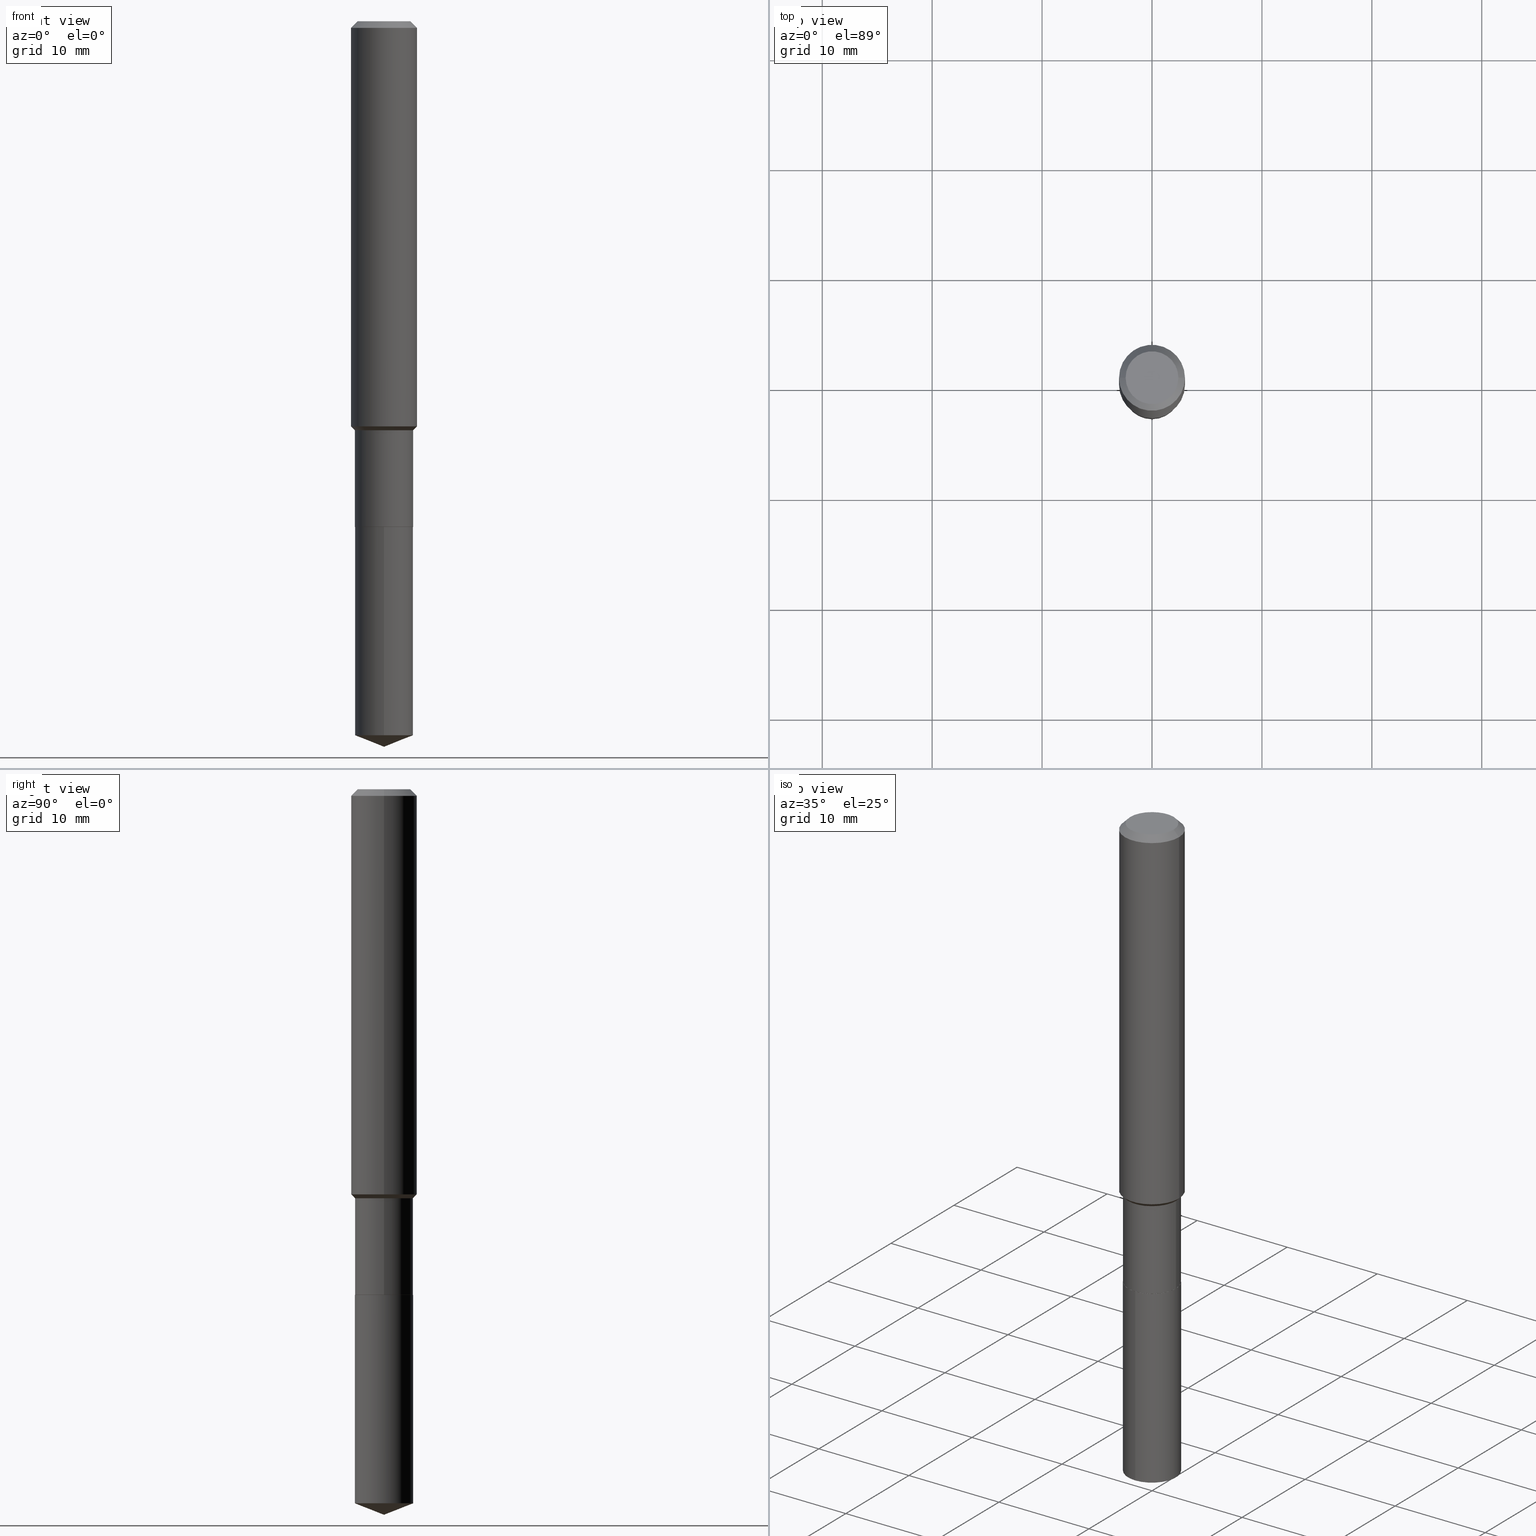
[diagram: canonical four-view strip — front | top / right | iso, engineering-drawing reading convention]
A machine part, canonical four-view strip (front | top / right | iso — engineering-drawing reading convention). The complete STEP part file that produces these views, byte-faithful:
ISO-10303-21;
HEADER;
FILE_DESCRIPTION (( 'STEP AP203' ),
    '1' );
FILE_NAME ('66423.STEP',
    '2024-04-24T22:31:54',
    ( '' ),
    ( '' ),
    'SwSTEP 2.0',
    'SolidWorks 2023',
    '' );
FILE_SCHEMA (( 'CONFIG_CONTROL_DESIGN' ));
ENDSEC;

DATA;
#1 = DIRECTION ( 'NONE',  ( 2.445580598395874941E-29, -3.491321246034550326E-15, -1.000000000000000000 ) ) ;
#2 = CC_DESIGN_DATE_AND_TIME_ASSIGNMENT ( #267, #261, ( #384 ) ) ;
#3 = CARTESIAN_POINT ( 'NONE',  ( 6.354191715484545882E-29, -9.072428981848907706E-15, -2.598399999999999821 ) ) ;
#4 = FACE_OUTER_BOUND ( 'NONE', #213, .T. ) ;
#5 = AXIS2_PLACEMENT_3D ( 'NONE', #473, #395, #476 ) ;
#6 = CC_DESIGN_APPROVAL ( #352, ( #384 ) ) ;
#7 = AXIS2_PLACEMENT_3D ( 'NONE', #373, #183, #369 ) ;
#8 = CARTESIAN_POINT ( 'NONE',  ( 3.581878160419369254E-29, -5.113972717003554503E-15, -1.464699999999999891 ) ) ;
#9 = DIRECTION ( 'NONE',  ( 0.000000000000000000, 0.000000000000000000, 1.000000000000000000 ) ) ;
#10 = DIRECTION ( 'NONE',  ( -2.445468806185136597E-29, 3.491481338843145583E-15, 1.000000000000000000 ) ) ;
#11 = ORIENTED_EDGE ( 'NONE', *, *, #479, .F. ) ;
#12 = DIRECTION ( 'NONE',  ( -2.445468806185136597E-29, 3.491481338843145583E-15, 1.000000000000000000 ) ) ;
#13 = ORIENTED_EDGE ( 'NONE', *, *, #426, .T. ) ;
#14 = CARTESIAN_POINT ( 'NONE',  ( 0.1180999999999999966, -9.071566814582237199E-16, -0.02362000000000014088 ) ) ;
#15 = EDGE_LOOP ( 'NONE', ( #443, #96, #458, #266 ) ) ;
#16 = COORDINATED_UNIVERSAL_TIME_OFFSET ( 5, 0, .BEHIND. ) ;
#17 = LINE ( 'NONE', #184, #214 ) ;
#18 = ADVANCED_FACE ( 'NONE', ( #58 ), #454, .T. ) ;
#19 = COORDINATED_UNIVERSAL_TIME_OFFSET ( 5, 0, .BEHIND. ) ;
#20 = DIRECTION ( 'NONE',  ( -2.445580598395875501E-29, 3.491321246034550326E-15, 1.000000000000000000 ) ) ;
#21 = ORIENTED_EDGE ( 'NONE', *, *, #173, .F. ) ;
#22 = EDGE_CURVE ( 'NONE', #45, #278, #484, .T. ) ;
#23 = DIRECTION ( 'NONE',  ( 1.000000000000000000, -6.982962677686267499E-15, 4.875432709231658792E-29 ) ) ;
#24 = EDGE_LOOP ( 'NONE', ( #113, #306, #241, #21 ) ) ;
#25 = AXIS2_PLACEMENT_3D ( 'NONE', #449, #451, #104 ) ;
#26 = EDGE_CURVE ( 'NONE', #210, #188, #248, .T. ) ;
#27 = DIRECTION ( 'NONE',  ( 2.438088387897960049E-29, -3.491481338843145188E-15, -1.000000000000000000 ) ) ;
#28 = DIRECTION ( 'NONE',  ( -6.982962677686265922E-15, -1.000000000000000000, 3.498627837350086264E-15 ) ) ;
#29 = DIRECTION ( 'NONE',  ( -0.7071067811865459074, 2.468850131082240100E-15, -0.7071067811865491270 ) ) ;
#30 = VERTEX_POINT ( 'NONE', #33 ) ;
#31 = VERTEX_POINT ( 'NONE', #182 ) ;
#32 = AXIS2_PLACEMENT_3D ( 'NONE', #397, #27, #60 ) ;
#33 = CARTESIAN_POINT ( 'NONE',  ( -0.1043499999999999706, -4.976198495723869965E-15, -1.810499999999999998 ) ) ;
#34 = DIRECTION ( 'NONE',  ( 1.000000000000000000, -6.982962677686270655E-15, 0.000000000000000000 ) ) ;
#35 = ADVANCED_FACE ( 'NONE', ( #339 ), #465, .T. ) ;
#36 = LINE ( 'NONE', #177, #439 ) ;
#37 = AXIS2_PLACEMENT_3D ( 'NONE', #452, #72, #34 ) ;
#38 = EDGE_CURVE ( 'NONE', #126, #480, #87, .T. ) ;
#39 = LINE ( 'NONE', #3, #275 ) ;
#40 = DIRECTION ( 'NONE',  ( 0.7071067811866078578, -2.468850131082888544E-15, 0.7071067811864871766 ) ) ;
#41 = FACE_OUTER_BOUND ( 'NONE', #15, .T. ) ;
#42 = CIRCLE ( 'NONE', #146, 0.1043499999999999706 ) ;
#43 = CLOSED_SHELL ( 'NONE', ( #348, #103, #18, #401, #158 ) ) ;
#44 = FACE_OUTER_BOUND ( 'NONE', #244, .T. ) ;
#45 = VERTEX_POINT ( 'NONE', #67 ) ;
#46 = DIMENSIONAL_EXPONENTS ( 1.000000000000000000, 0.000000000000000000, 0.000000000000000000, 0.000000000000000000, 0.000000000000000000, 0.000000000000000000, 0.000000000000000000 ) ;
#47 = CALENDAR_DATE ( 2024, 24, 4 ) ;
#48 = DIRECTION ( 'NONE',  ( -2.445468806185136597E-29, 3.491481338843145583E-15, 1.000000000000000000 ) ) ;
#49 = PERSON_AND_ORGANIZATION_ROLE ( 'design_owner' ) ;
#50 = DIRECTION ( 'NONE',  ( 1.000000000000000000, -6.982962677686266711E-15, 0.000000000000000000 ) ) ;
#51 = PERSON_AND_ORGANIZATION ( #269, #447 ) ;
#52 = CIRCLE ( 'NONE', #402, 0.09447999999999998066 ) ;
#53 = LINE ( 'NONE', #187, #134 ) ;
#54 = CC_DESIGN_APPROVAL ( #399, ( #226 ) ) ;
#55 = PERSON_AND_ORGANIZATION ( #269, #447 ) ;
#56 = CARTESIAN_POINT ( 'NONE',  ( 0.1043499999999999567, -5.842644872420116125E-15, -1.464699999999999891 ) ) ;
#57 = DIRECTION ( 'NONE',  ( -6.982962677686265922E-15, -1.000000000000000000, 2.617966452960482631E-15 ) ) ;
#58 = FACE_OUTER_BOUND ( 'NONE', #312, .T. ) ;
#59 = EDGE_CURVE ( 'NONE', #355, #31, #166, .T. ) ;
#60 = DIRECTION ( 'NONE',  ( -1.000000000000000000, 6.982962677686265922E-15, -4.876176775795935793E-29 ) ) ;
#61 = ORIENTED_EDGE ( 'NONE', *, *, #486, .F. ) ;
#62 = DIRECTION ( 'NONE',  ( -2.445468806185136597E-29, 3.491481338843145583E-15, 1.000000000000000000 ) ) ;
#63 = VERTEX_POINT ( 'NONE', #367 ) ;
#64 = ORIENTED_EDGE ( 'NONE', *, *, #421, .F. ) ;
#65 = AXIS2_PLACEMENT_3D ( 'NONE', #379, #356, #79 ) ;
#66 = CARTESIAN_POINT ( 'NONE',  ( 0.000000000000000000, 0.000000000000000000, 0.000000000000000000 ) ) ;
#67 = CARTESIAN_POINT ( 'NONE',  ( 0.1181000000000001632, -5.890652740829210234E-15, -1.450949999999999740 ) ) ;
#68 = PLANE ( 'NONE',  #390 ) ;
#69 = ADVANCED_FACE ( 'NONE', ( #292 ), #143, .F. ) ;
#70 = FACE_OUTER_BOUND ( 'NONE', #380, .T. ) ;
#71 = VECTOR ( 'NONE', #345, 39.37007874015748854 ) ;
#72 = DIRECTION ( 'NONE',  ( -2.445468806185136597E-29, 3.491481338843145583E-15, 1.000000000000000000 ) ) ;
#73 = APPLICATION_CONTEXT ( 'configuration controlled 3d designs of mechanical parts and assemblies' ) ;
#74 = LINE ( 'NONE', #374, #71 ) ;
#75 = DIRECTION ( 'NONE',  ( -1.000000000000000000, 6.982962677686266711E-15, 0.000000000000000000 ) ) ;
#76 = ORIENTED_EDGE ( 'NONE', *, *, #415, .T. ) ;
#77 = VECTOR ( 'NONE', #225, 39.37007874015748143 ) ;
#78 = COORDINATED_UNIVERSAL_TIME_OFFSET ( 5, 0, .BEHIND. ) ;
#79 = DIRECTION ( 'NONE',  ( -6.982962677686265922E-15, -1.000000000000000000, 2.617966452960482631E-15 ) ) ;
#80 = VECTOR ( 'NONE', #148, 39.37007874015748143 ) ;
#81 = CARTESIAN_POINT ( 'NONE',  ( 0.1181000000000000799, -8.246878922347486570E-16, 5.758764772215004644E-30 ) ) ;
#82 = CC_DESIGN_PERSON_AND_ORGANIZATION_ASSIGNMENT ( #459, #270, ( #384 ) ) ;
#83 = LENGTH_MEASURE_WITH_UNIT ( LENGTH_MEASURE( 0.02539999999999999897 ), #393 );
#84 = DIRECTION ( 'NONE',  ( -2.445468806185136597E-29, 3.491481338843145583E-15, 1.000000000000000000 ) ) ;
#85 = APPROVAL_STATUS ( 'not_yet_approved' ) ;
#86 = DIRECTION ( 'NONE',  ( -2.445468806185136597E-29, 3.491481338843145583E-15, 1.000000000000000000 ) ) ;
#87 = CIRCLE ( 'NONE', #299, 0.1038499999999999840 ) ;
#88 = ORIENTED_EDGE ( 'NONE', *, *, #212, .T. ) ;
#89 = APPROVAL_DATE_TIME ( #463, #288 ) ;
#90 = CARTESIAN_POINT ( 'NONE',  ( -0.1043499999999999567, -4.976198495723869965E-15, -1.464699999999999891 ) ) ;
#91 = ORIENTED_EDGE ( 'NONE', *, *, #332, .T. ) ;
#92 = AXIS2_PLACEMENT_3D ( 'NONE', #386, #12, #50 ) ;
#93 = CARTESIAN_POINT ( 'NONE',  ( 4.716267017698007905E-46, -6.733579360998555036E-32, -1.928573779297252010E-17 ) ) ;
#94 = ORIENTED_EDGE ( 'NONE', *, *, #154, .T. ) ;
#95 = DIRECTION ( 'NONE',  ( -2.445468806185136877E-29, 3.491481338843145188E-15, 1.000000000000000000 ) ) ;
#96 = ORIENTED_EDGE ( 'NONE', *, *, #239, .T. ) ;
#97 = AXIS2_PLACEMENT_3D ( 'NONE', #298, #180, #455 ) ;
#98 = ORIENTED_EDGE ( 'NONE', *, *, #38, .T. ) ;
#99 = ORIENTED_EDGE ( 'NONE', *, *, #198, .F. ) ;
#100 = CIRCLE ( 'NONE', #195, 0.1180999999999999966 ) ;
#101 = ADVANCED_FACE ( 'NONE', ( #337 ), #238, .T. ) ;
#102 = FACE_OUTER_BOUND ( 'NONE', #128, .T. ) ;
#103 = ADVANCED_FACE ( 'NONE', ( #107 ), #147, .T. ) ;
#104 = DIRECTION ( 'NONE',  ( 1.000000000000000000, -6.982962677686265922E-15, 4.876176775795935793E-29 ) ) ;
#105 = UNCERTAINTY_MEASURE_WITH_UNIT (LENGTH_MEASURE( 1.000000000000000082E-05 ), #199, 'distance_accuracy_value', 'NONE');
#106 = DIRECTION ( 'NONE',  ( 1.000000000000000000, -6.982962677686265922E-15, 0.000000000000000000 ) ) ;
#107 = FACE_OUTER_BOUND ( 'NONE', #156, .T. ) ;
#108 = DIRECTION ( 'NONE',  ( -2.445580598395875501E-29, 3.491321246034550326E-15, 1.000000000000000000 ) ) ;
#109 = APPROVAL_PERSON_ORGANIZATION ( #308, #288, #347 ) ;
#110 = CARTESIAN_POINT ( 'NONE',  ( 0.000000000000000000, 0.000000000000000000, 0.000000000000000000 ) ) ;
#111 = EDGE_LOOP ( 'NONE', ( #358, #477, #236, #167 ) ) ;
#112 = DIRECTION ( 'NONE',  ( -6.982962677686265922E-15, -1.000000000000000000, 5.235932905920965262E-15 ) ) ;
#113 = ORIENTED_EDGE ( 'NONE', *, *, #338, .F. ) ;
#114 = DIRECTION ( 'NONE',  ( 1.000000000000000000, -6.982962677686265922E-15, 0.000000000000000000 ) ) ;
#115 = CALENDAR_DATE ( 2024, 24, 4 ) ;
#116 = DIRECTION ( 'NONE',  ( 1.000000000000000000, -6.982962677686265133E-15, 0.000000000000000000 ) ) ;
#117 = DATE_AND_TIME ( #229, #131 ) ;
#118 = CYLINDRICAL_SURFACE ( 'NONE', #378, 0.1181000000000000799 ) ;
#119 = ORIENTED_EDGE ( 'NONE', *, *, #169, .F. ) ;
#120 = CIRCLE ( 'NONE', #65, 0.1043499999999999844 ) ;
#121 = PERSON_AND_ORGANIZATION_ROLE ( 'creator' ) ;
#122 = ADVANCED_FACE ( 'NONE', ( #102 ), #487, .T. ) ;
#123 = AXIS2_PLACEMENT_3D ( 'NONE', #423, #84, #300 ) ;
#124 = DIRECTION ( 'NONE',  ( 0.7071067811865505703, -2.468850131082288615E-15, 0.7071067811865444641 ) ) ;
#125 = VECTOR ( 'NONE', #413, 39.37007874015748143 ) ;
#126 = VERTEX_POINT ( 'NONE', #336 ) ;
#127 = DIRECTION ( 'NONE',  ( -6.982962677686265922E-15, -1.000000000000000000, 2.617966452960482631E-15 ) ) ;
#128 = EDGE_LOOP ( 'NONE', ( #283, #91, #462, #99 ) ) ;
#129 = DIRECTION ( 'NONE',  ( -6.982962677686265922E-15, -1.000000000000000000, 2.617966452960482631E-15 ) ) ;
#130 = VERTEX_POINT ( 'NONE', #137 ) ;
#131 = LOCAL_TIME ( 18, 31, 54.00000000000000000, #196 ) ;
#132 = LINE ( 'NONE', #360, #164 ) ;
#133 = EDGE_LOOP ( 'NONE', ( #159, #249, #327, #428 ) ) ;
#134 = VECTOR ( 'NONE', #464, 39.37007874015748143 ) ;
#135 = CC_DESIGN_PERSON_AND_ORGANIZATION_ASSIGNMENT ( #430, #417, ( #406 ) ) ;
#136 = ORIENTED_EDGE ( 'NONE', *, *, #276, .F. ) ;
#137 = CARTESIAN_POINT ( 'NONE',  ( -0.09447999999999998066, 7.009847083995354710E-16, -1.928573779297727792E-17 ) ) ;
#138 = CARTESIAN_POINT ( 'NONE',  ( 4.428744008001282238E-29, -6.323072704644935995E-15, -1.810999999999999943 ) ) ;
#139 = AXIS2_PLACEMENT_3D ( 'NONE', #409, #370, #106 ) ;
#140 = CARTESIAN_POINT ( 'NONE',  ( -7.286721554165174458E-16, -0.1043500000000063127, -1.810999999999999721 ) ) ;
#141 = CC_DESIGN_APPROVAL ( #288, ( #406 ) ) ;
#142 = AXIS2_PLACEMENT_3D ( 'NONE', #8, #48, #114 ) ;
#143 = PLANE ( 'NONE',  #25 ) ;
#144 = VECTOR ( 'NONE', #29, 39.37007874015748143 ) ;
#145 = DIRECTION ( 'NONE',  ( 1.000000000000000000, -6.982962677686265922E-15, 0.000000000000000000 ) ) ;
#146 = AXIS2_PLACEMENT_3D ( 'NONE', #392, #362, #481 ) ;
#147 = CONICAL_SURFACE ( 'NONE', #429, 99.94676754583763056, 1.195550537616111519 ) ;
#148 = DIRECTION ( 'NONE',  ( -0.7071067811866078578, 7.493145998870571886E-15, 0.7071067811864871766 ) ) ;
#149 = ORIENTED_EDGE ( 'NONE', *, *, #479, .T. ) ;
#150 = APPROVAL_STATUS ( 'not_yet_approved' ) ;
#151 = DIRECTION ( 'NONE',  ( 0.7071067811865459074, -7.319954787623249734E-15, -0.7071067811865491270 ) ) ;
#152 = ORIENTED_EDGE ( 'NONE', *, *, #154, .F. ) ;
#153 = COORDINATED_UNIVERSAL_TIME_OFFSET ( 5, 0, .BEHIND. ) ;
#154 = EDGE_CURVE ( 'NONE', #480, #246, #36, .T. ) ;
#155 = DIRECTION ( 'NONE',  ( -2.445468806185136877E-29, 3.491481338843145188E-15, 1.000000000000000000 ) ) ;
#156 = EDGE_LOOP ( 'NONE', ( #119, #329, #325 ) ) ;
#157 = FACE_OUTER_BOUND ( 'NONE', #394, .T. ) ;
#158 = ADVANCED_FACE ( 'NONE', ( #70 ), #68, .F. ) ;
#159 = ORIENTED_EDGE ( 'NONE', *, *, #212, .F. ) ;
#160 = DIRECTION ( 'NONE',  ( -2.445468806185136877E-29, 3.491481338843145188E-15, 1.000000000000000000 ) ) ;
#161 = DATE_AND_TIME ( #391, #472 ) ;
#162 = LINE ( 'NONE', #206, #320 ) ;
#163 = VERTEX_POINT ( 'NONE', #140 ) ;
#164 = VECTOR ( 'NONE', #170, 39.37007874015748143 ) ;
#165 = DIRECTION ( 'NONE',  ( 1.000000000000000000, -6.982962677686267499E-15, 4.875432709231658792E-29 ) ) ;
#166 = CIRCLE ( 'NONE', #228, 0.1043499999999999567 ) ;
#167 = ORIENTED_EDGE ( 'NONE', *, *, #368, .F. ) ;
#168 = VECTOR ( 'NONE', #151, 39.37007874015748143 ) ;
#169 = EDGE_CURVE ( 'NONE', #194, #188, #39, .T. ) ;
#170 = DIRECTION ( 'NONE',  ( -2.445580598395875221E-29, 3.491321246034550326E-15, 1.000000000000000000 ) ) ;
#171 = CARTESIAN_POINT ( 'NONE',  ( 3.548252964334323379E-29, -5.065964848594461182E-15, -1.450949999999999740 ) ) ;
#172 = CYLINDRICAL_SURFACE ( 'NONE', #474, 0.1043499999999999844 ) ;
#173 = EDGE_CURVE ( 'NONE', #278, #45, #176, .T. ) ;
#174 = ORIENTED_EDGE ( 'NONE', *, *, #486, .T. ) ;
#175 = ORIENTED_EDGE ( 'NONE', *, *, #426, .F. ) ;
#176 = CIRCLE ( 'NONE', #37, 0.1181000000000001632 ) ;
#177 = CARTESIAN_POINT ( 'NONE',  ( 0.1038499999999999840, -7.048253378722654610E-15, -1.810999999999999943 ) ) ;
#178 = CC_DESIGN_SECURITY_CLASSIFICATION ( #406, ( #226 ) ) ;
#179 = ADVANCED_FACE ( 'NONE', ( #223 ), #490, .T. ) ;
#180 = DIRECTION ( 'NONE',  ( -2.445468806185136597E-29, 3.491481338843145583E-15, 1.000000000000000000 ) ) ;
#181 = CARTESIAN_POINT ( 'NONE',  ( 6.253869661308804217E-29, -8.928629836662944944E-15, -2.557295441869579911 ) ) ;
#182 = CARTESIAN_POINT ( 'NONE',  ( 0.1043499999999999567, -5.842644872420116125E-15, -1.464699999999999891 ) ) ;
#183 = DIRECTION ( 'NONE',  ( 2.445468806185136597E-29, -3.491481338843145583E-15, -1.000000000000000000 ) ) ;
#184 = CARTESIAN_POINT ( 'NONE',  ( -0.1181000000000000799, 8.391509709326788873E-16, -5.809262341591047988E-30 ) ) ;
#185 = ADVANCED_FACE ( 'NONE', ( #4 ), #307, .T. ) ;
#186 = MECHANICAL_CONTEXT ( 'NONE', #350, 'mechanical' ) ;
#187 = CARTESIAN_POINT ( 'NONE',  ( -0.1043499999999999706, 7.414513447656643348E-16, -5.132908766680992704E-30 ) ) ;
#188 = VERTEX_POINT ( 'NONE', #259 ) ;
#189 = DATE_TIME_ROLE ( 'classification_date' ) ;
#190 = LINE ( 'NONE', #419, #80 ) ;
#191 = CONICAL_SURFACE ( 'NONE', #434, 0.1180999999999999966, 0.7853981633974460586 ) ;
#192 = DATE_AND_TIME ( #47, #372 ) ;
#193 = LINE ( 'NONE', #304, #125 ) ;
#194 = VERTEX_POINT ( 'NONE', #216 ) ;
#195 = AXIS2_PLACEMENT_3D ( 'NONE', #235, #457, #388 ) ;
#196 = COORDINATED_UNIVERSAL_TIME_OFFSET ( 5, 0, .BEHIND. ) ;
#197 = FACE_OUTER_BOUND ( 'NONE', #24, .T. ) ;
#198 = EDGE_CURVE ( 'NONE', #45, #252, #349, .T. ) ;
#199 =( CONVERSION_BASED_UNIT ( 'INCH', #83 ) LENGTH_UNIT ( ) NAMED_UNIT ( #46 ) );
#200 = DIRECTION ( 'NONE',  ( -2.445580598395875501E-29, 3.491321246034550326E-15, 1.000000000000000000 ) ) ;
#201 = CC_DESIGN_DATE_AND_TIME_ASSIGNMENT ( #192, #189, ( #406 ) ) ;
#202 = ORIENTED_EDGE ( 'NONE', *, *, #280, .F. ) ;
#203 = FACE_OUTER_BOUND ( 'NONE', #420, .T. ) ;
#204 = ORIENTED_EDGE ( 'NONE', *, *, #412, .T. ) ;
#205 = EDGE_CURVE ( 'NONE', #194, #210, #74, .T. ) ;
#206 = CARTESIAN_POINT ( 'NONE',  ( 0.1043499999999999706, -7.286721554165617206E-16, 5.088290465543058008E-30 ) ) ;
#207 = AXIS2_PLACEMENT_3D ( 'NONE', #181, #256, #218 ) ;
#208 = DIRECTION ( 'NONE',  ( -2.445580598395875501E-29, 3.491321246034550326E-15, 1.000000000000000000 ) ) ;
#209 = CARTESIAN_POINT ( 'NONE',  ( 7.414513447657270492E-16, 0.1043499999999936700, -1.811000000000000165 ) ) ;
#210 = VERTEX_POINT ( 'NONE', #265 ) ;
#211 = SHAPE_DEFINITION_REPRESENTATION ( #310, #296 ) ;
#212 = EDGE_CURVE ( 'NONE', #210, #383, #193, .T. ) ;
#213 = EDGE_LOOP ( 'NONE', ( #136, #98, #94, #227 ) ) ;
#214 = VECTOR ( 'NONE', #160, 39.37007874015748143 ) ;
#215 = APPROVAL_PERSON_ORGANIZATION ( #51, #352, #381 ) ;
#216 = CARTESIAN_POINT ( 'NONE',  ( 6.354596626871842033E-29, -9.071849125696174722E-15, -2.598399999999999821 ) ) ;
#217 = CARTESIAN_POINT ( 'NONE',  ( 4.428744008001282238E-29, -6.323072704644935995E-15, -1.810999999999999943 ) ) ;
#218 = DIRECTION ( 'NONE',  ( -6.982962677686265922E-15, -1.000000000000000000, 5.235932905920965262E-15 ) ) ;
#219 = EDGE_CURVE ( 'NONE', #30, #355, #53, .T. ) ;
#220 = AXIS2_PLACEMENT_3D ( 'NONE', #285, #20, #129 ) ;
#221 = DIRECTION ( 'NONE',  ( 1.000000000000000000, -6.982962677686270655E-15, 0.000000000000000000 ) ) ;
#222 = CC_DESIGN_PERSON_AND_ORGANIZATION_ASSIGNMENT ( #264, #471, ( #226 ) ) ;
#223 = FACE_OUTER_BOUND ( 'NONE', #111, .T. ) ;
#224 = CARTESIAN_POINT ( 'NONE',  ( 5.776197320209327532E-31, -8.246878922347559293E-17, -0.02362000000000014088 ) ) ;
#225 = DIRECTION ( 'NONE',  ( -0.7071067811865505703, 7.493145998870365204E-15, 0.7071067811865444641 ) ) ;
#226 = PRODUCT_DEFINITION_FORMATION_WITH_SPECIFIED_SOURCE ( 'ANY', '', #387, .NOT_KNOWN. ) ;
#227 = ORIENTED_EDGE ( 'NONE', *, *, #239, .F. ) ;
#228 = AXIS2_PLACEMENT_3D ( 'NONE', #333, #257, #145 ) ;
#229 = CALENDAR_DATE ( 2024, 24, 4 ) ;
#230 = CYLINDRICAL_SURFACE ( 'NONE', #483, 0.1043499999999999844 ) ;
#231 = CONICAL_SURFACE ( 'NONE', #142, 0.1043499999999999567, 0.7853981633974526089 ) ;
#232 = APPLICATION_PROTOCOL_DEFINITION ( 'international standard', 'config_control_design', 1994, #73 ) ;
#233 = CARTESIAN_POINT ( 'NONE',  ( 0.1043499999999999706, -7.049999119392076113E-15, -1.810499999999999998 ) ) ;
#234 =( NAMED_UNIT ( * ) PLANE_ANGLE_UNIT ( ) SI_UNIT ( $, .RADIAN. ) );
#235 = CARTESIAN_POINT ( 'NONE',  ( 5.776197320209327532E-31, -8.246878922347559293E-17, -0.02362000000000014088 ) ) ;
#236 = ORIENTED_EDGE ( 'NONE', *, *, #330, .T. ) ;
#237 = APPROVAL_ROLE ( '' ) ;
#238 = CONICAL_SURFACE ( 'NONE', #139, 0.1043499999999999567, 0.7853981633974526089 ) ;
#239 = EDGE_CURVE ( 'NONE', #30, #246, #410, .T. ) ;
#240 = DIRECTION ( 'NONE',  ( 1.000000000000000000, -6.982962677686268288E-15, 0.000000000000000000 ) ) ;
#241 = ORIENTED_EDGE ( 'NONE', *, *, #456, .T. ) ;
#242 = CARTESIAN_POINT ( 'NONE',  ( 4.716267017698007905E-46, -6.733579360998555036E-32, -1.928573779297252010E-17 ) ) ;
#243 = EDGE_CURVE ( 'NONE', #63, #252, #301, .T. ) ;
#244 = EDGE_LOOP ( 'NONE', ( #302, #88, #366, #485 ) ) ;
#245 = FACE_OUTER_BOUND ( 'NONE', #475, .T. ) ;
#246 = VERTEX_POINT ( 'NONE', #233 ) ;
#247 = LINE ( 'NONE', #56, #376 ) ;
#248 = CIRCLE ( 'NONE', #207, 0.1043499999999999844 ) ;
#249 = ORIENTED_EDGE ( 'NONE', *, *, #26, .T. ) ;
#250 = ADVANCED_FACE ( 'NONE', ( #197 ), #231, .T. ) ;
#251 = LOCAL_TIME ( 18, 31, 54.00000000000000000, #153 ) ;
#252 = VERTEX_POINT ( 'NONE', #14 ) ;
#253 = ORIENTED_EDGE ( 'NONE', *, *, #280, .T. ) ;
#254 = DIRECTION ( 'NONE',  ( 6.982962677686265922E-15, 1.000000000000000000, -3.491321246034550326E-15 ) ) ;
#255 = DIRECTION ( 'NONE',  ( -2.445468806185136597E-29, 3.491481338843145583E-15, 1.000000000000000000 ) ) ;
#256 = DIRECTION ( 'NONE',  ( -2.445580598395875501E-29, 3.491321246034550326E-15, 1.000000000000000000 ) ) ;
#257 = DIRECTION ( 'NONE',  ( -2.445468806185136597E-29, 3.491481338843145583E-15, 1.000000000000000000 ) ) ;
#258 = AXIS2_PLACEMENT_3D ( 'NONE', #433, #208, #28 ) ;
#259 = CARTESIAN_POINT ( 'NONE',  ( -7.286721554164994006E-16, -0.1043500000000089217, -2.557295441869579466 ) ) ;
#260 = DIRECTION ( 'NONE',  ( -2.445468806185136597E-29, 3.491481338843145583E-15, 1.000000000000000000 ) ) ;
#261 = DATE_TIME_ROLE ( 'creation_date' ) ;
#262 = LINE ( 'NONE', #418, #77 ) ;
#263 = VECTOR ( 'NONE', #155, 39.37007874015748143 ) ;
#264 = PERSON_AND_ORGANIZATION ( #269, #447 ) ;
#265 = CARTESIAN_POINT ( 'NONE',  ( 7.414513447657269506E-16, 0.1043499999999911027, -2.557295441869580799 ) ) ;
#266 = ORIENTED_EDGE ( 'NONE', *, *, #59, .F. ) ;
#267 = DATE_AND_TIME ( #115, #273 ) ;
#268 = DIRECTION ( 'NONE',  ( -2.445580598395875501E-29, 3.491321246034550326E-15, 1.000000000000000000 ) ) ;
#269 = PERSON ( 'UNSPECIFIED', 'UNSPECIFIED', 'UNSPECIFIED', ('UNSPECIFIED'), ('UNSPECIFIED'), ('UNSPECIFIED') ) ;
#270 = PERSON_AND_ORGANIZATION_ROLE ( 'creator' ) ;
#271 = CARTESIAN_POINT ( 'NONE',  ( 4.428744008001282238E-29, -6.323072704644935995E-15, -1.810999999999999943 ) ) ;
#272 = ORIENTED_EDGE ( 'NONE', *, *, #205, .F. ) ;
#273 = LOCAL_TIME ( 18, 31, 54.00000000000000000, #19 ) ;
#274 = SECURITY_CLASSIFICATION_LEVEL ( 'unclassified' ) ;
#275 = VECTOR ( 'NONE', #407, 39.37007874015748143 ) ;
#276 = EDGE_CURVE ( 'NONE', #126, #30, #190, .T. ) ;
#277 = MANIFOLD_SOLID_BREP ( 'Body-Move/Copy2[1]', #43 ) ;
#278 = VERTEX_POINT ( 'NONE', #470 ) ;
#279 = DIRECTION ( 'NONE',  ( 1.000000000000000000, -6.982962677686265922E-15, 0.000000000000000000 ) ) ;
#280 = EDGE_CURVE ( 'NONE', #482, #252, #295, .T. ) ;
#281 = ORIENTED_EDGE ( 'NONE', *, *, #415, .F. ) ;
#282 = CARTESIAN_POINT ( 'NONE',  ( 4.428744008001282238E-29, -6.323072704644935995E-15, -1.810999999999999943 ) ) ;
#283 = ORIENTED_EDGE ( 'NONE', *, *, #22, .T. ) ;
#284 = CIRCLE ( 'NONE', #328, 0.1038499999999999840 ) ;
#285 = CARTESIAN_POINT ( 'NONE',  ( 4.428744008001282238E-29, -6.323072704644935995E-15, -1.810999999999999943 ) ) ;
#286 = ORIENTED_EDGE ( 'NONE', *, *, #38, .F. ) ;
#287 = EDGE_LOOP ( 'NONE', ( #174, #431, #281, #152 ) ) ;
#288 = APPROVAL ( #466, 'UNSPECIFIED' ) ;
#289 = CARTESIAN_POINT ( 'NONE',  ( 4.428744008001282238E-29, -6.323072704644935995E-15, -1.810999999999999943 ) ) ;
#290 = APPROVAL_PERSON_ORGANIZATION ( #425, #399, #237 ) ;
#291 = ADVANCED_FACE ( 'NONE', ( #157 ), #191, .T. ) ;
#292 = FACE_OUTER_BOUND ( 'NONE', #342, .T. ) ;
#293 = EDGE_CURVE ( 'NONE', #188, #210, #444, .T. ) ;
#294 = DIRECTION ( 'NONE',  ( -2.445468806185136597E-29, 3.491481338843145583E-15, 1.000000000000000000 ) ) ;
#295 = CIRCLE ( 'NONE', #92, 0.1180999999999999966 ) ;
#296 = ADVANCED_BREP_SHAPE_REPRESENTATION ( '66423', ( #277, #440, #453 ), #354 ) ;
#297 = DIRECTION ( 'NONE',  ( 1.000000000000000000, -6.982962677686268288E-15, 0.000000000000000000 ) ) ;
#298 = CARTESIAN_POINT ( 'NONE',  ( 4.428744008001282238E-29, -6.323072704644935995E-15, -1.810999999999999943 ) ) ;
#299 = AXIS2_PLACEMENT_3D ( 'NONE', #138, #371, #488 ) ;
#300 = DIRECTION ( 'NONE',  ( 1.000000000000000000, -6.982962677686266711E-15, 4.876176775795936353E-29 ) ) ;
#301 = LINE ( 'NONE', #353, #168 ) ;
#302 = ORIENTED_EDGE ( 'NONE', *, *, #293, .T. ) ;
#303 = CALENDAR_DATE ( 2024, 24, 4 ) ;
#304 = CARTESIAN_POINT ( 'NONE',  ( 7.414513447657086096E-16, 0.1043499999999936700, -1.811000000000000165 ) ) ;
#305 = ADVANCED_FACE ( 'NONE', ( #41 ), #467, .T. ) ;
#306 = ORIENTED_EDGE ( 'NONE', *, *, #59, .T. ) ;
#307 = CONICAL_SURFACE ( 'NONE', #97, 0.1038499999999999840, 0.7853981633975336552 ) ;
#308 = PERSON_AND_ORGANIZATION ( #269, #447 ) ;
#309 = CARTESIAN_POINT ( 'NONE',  ( 4.427521273598189436E-29, -6.321326963975514491E-15, -1.810499999999999998 ) ) ;
#310 = PRODUCT_DEFINITION_SHAPE ( 'NONE', 'NONE',  #384 ) ;
#311 = CC_DESIGN_PERSON_AND_ORGANIZATION_ASSIGNMENT ( #316, #121, ( #226 ) ) ;
#312 = EDGE_LOOP ( 'NONE', ( #272, #396, #363 ) ) ;
#313 = APPROVAL_DATE_TIME ( #161, #399 ) ;
#314 = FACE_OUTER_BOUND ( 'NONE', #346, .T. ) ;
#315 = EDGE_CURVE ( 'NONE', #383, #163, #120, .T. ) ;
#316 = PERSON_AND_ORGANIZATION ( #269, #447 ) ;
#317 = CIRCLE ( 'NONE', #437, 0.09447999999999998066 ) ;
#318 = CYLINDRICAL_SURFACE ( 'NONE', #5, 0.1043499999999999706 ) ;
#319 = ORIENTED_EDGE ( 'NONE', *, *, #198, .T. ) ;
#320 = VECTOR ( 'NONE', #95, 39.37007874015748143 ) ;
#321 = CLOSED_SHELL ( 'NONE', ( #35, #179, #122, #101, #445, #305, #250, #334, #291, #460, #69, #185 ) ) ;
#322 = CARTESIAN_POINT ( 'NONE',  ( 3.581878160419369254E-29, -5.113972717003554503E-15, -1.464699999999999891 ) ) ;
#323 = ORIENTED_EDGE ( 'NONE', *, *, #456, .F. ) ;
#324 = CARTESIAN_POINT ( 'NONE',  ( -0.1180999999999999966, 7.422191030112725094E-16, -0.02362000000000014088 ) ) ;
#325 = ORIENTED_EDGE ( 'NONE', *, *, #293, .F. ) ;
#326 = PLANE ( 'NONE',  #32 ) ;
#327 = ORIENTED_EDGE ( 'NONE', *, *, #469, .T. ) ;
#328 = AXIS2_PLACEMENT_3D ( 'NONE', #271, #86, #240 ) ;
#329 = ORIENTED_EDGE ( 'NONE', *, *, #205, .T. ) ;
#330 = EDGE_CURVE ( 'NONE', #252, #482, #100, .T. ) ;
#331 = DIRECTION ( 'NONE',  ( -2.445468806185136597E-29, 3.491481338843145583E-15, 1.000000000000000000 ) ) ;
#332 = EDGE_CURVE ( 'NONE', #278, #482, #17, .T. ) ;
#333 = CARTESIAN_POINT ( 'NONE',  ( 3.581878160419369254E-29, -5.113972717003554503E-15, -1.464699999999999891 ) ) ;
#334 = ADVANCED_FACE ( 'NONE', ( #314 ), #118, .T. ) ;
#335 = AXIS2_PLACEMENT_3D ( 'NONE', #66, #294, #408 ) ;
#336 = CARTESIAN_POINT ( 'NONE',  ( -0.1038499999999999840, -5.582524846383961555E-15, -1.810999999999999943 ) ) ;
#337 = FACE_OUTER_BOUND ( 'NONE', #400, .T. ) ;
#338 = EDGE_CURVE ( 'NONE', #355, #278, #262, .T. ) ;
#339 = FACE_OUTER_BOUND ( 'NONE', #287, .T. ) ;
#340 = AXIS2_PLACEMENT_3D ( 'NONE', #322, #62, #279 ) ;
#341 = DIRECTION ( 'NONE',  ( 2.445468806185136597E-29, -3.491481338843145583E-15, -1.000000000000000000 ) ) ;
#342 = EDGE_LOOP ( 'NONE', ( #61, #286 ) ) ;
#343 = AXIS2_PLACEMENT_3D ( 'NONE', #309, #10, #116 ) ;
#344 = APPROVAL_DATE_TIME ( #117, #352 ) ;
#345 = DIRECTION ( 'NONE',  ( 6.611014441532045290E-15, 0.9304175679820241296, 0.3665012267242979127 ) ) ;
#346 = EDGE_LOOP ( 'NONE', ( #416, #468, #319, #202 ) ) ;
#347 = APPROVAL_ROLE ( '' ) ;
#348 = ADVANCED_FACE ( 'NONE', ( #44 ), #230, .T. ) ;
#349 = LINE ( 'NONE', #81, #263 ) ;
#350 = APPLICATION_CONTEXT ( 'configuration controlled 3d designs of mechanical parts and assemblies' ) ;
#351 =( NAMED_UNIT ( * ) SI_UNIT ( $, .STERADIAN. ) SOLID_ANGLE_UNIT ( ) );
#352 = APPROVAL ( #150, 'UNSPECIFIED' ) ;
#353 = CARTESIAN_POINT ( 'NONE',  ( 0.1180999999999999966, -8.926936027602933910E-16, -0.02362000000000014088 ) ) ;
#354 =( GEOMETRIC_REPRESENTATION_CONTEXT ( 3 ) GLOBAL_UNCERTAINTY_ASSIGNED_CONTEXT ( ( #105 ) ) GLOBAL_UNIT_ASSIGNED_CONTEXT ( ( #199, #234, #351 ) ) REPRESENTATION_CONTEXT ( 'NONE', 'WORKASPACE' ) );
#355 = VERTEX_POINT ( 'NONE', #90 ) ;
#356 = DIRECTION ( 'NONE',  ( -2.445580598395875501E-29, 3.491321246034550326E-15, 1.000000000000000000 ) ) ;
#357 = DIRECTION ( 'NONE',  ( -2.445580598395875501E-29, 3.491321246034550326E-15, 1.000000000000000000 ) ) ;
#358 = ORIENTED_EDGE ( 'NONE', *, *, #412, .F. ) ;
#359 = CC_DESIGN_PERSON_AND_ORGANIZATION_ASSIGNMENT ( #55, #49, ( #387 ) ) ;
#360 = CARTESIAN_POINT ( 'NONE',  ( -7.286721554165174458E-16, -0.1043500000000063127, -1.810999999999999721 ) ) ;
#361 = ORIENTED_EDGE ( 'NONE', *, *, #338, .T. ) ;
#362 = DIRECTION ( 'NONE',  ( -2.445468806185136597E-29, 3.491481338843145583E-15, 1.000000000000000000 ) ) ;
#363 = ORIENTED_EDGE ( 'NONE', *, *, #26, .F. ) ;
#364 = CARTESIAN_POINT ( 'NONE',  ( 0.1038499999999999840, -7.048253378722654610E-15, -1.810999999999999943 ) ) ;
#365 = ORIENTED_EDGE ( 'NONE', *, *, #243, .F. ) ;
#366 = ORIENTED_EDGE ( 'NONE', *, *, #438, .F. ) ;
#367 = CARTESIAN_POINT ( 'NONE',  ( 0.09447999999999998066, -7.704367267948738690E-16, -1.928573779296752193E-17 ) ) ;
#368 = EDGE_CURVE ( 'NONE', #130, #482, #432, .T. ) ;
#369 = DIRECTION ( 'NONE',  ( -1.000000000000000000, 6.982962677686266711E-15, 0.000000000000000000 ) ) ;
#370 = DIRECTION ( 'NONE',  ( -2.445468806185136597E-29, 3.491481338843145583E-15, 1.000000000000000000 ) ) ;
#371 = DIRECTION ( 'NONE',  ( -2.445468806185136597E-29, 3.491481338843145583E-15, 1.000000000000000000 ) ) ;
#372 = LOCAL_TIME ( 18, 31, 54.00000000000000000, #78 ) ;
#373 = CARTESIAN_POINT ( 'NONE',  ( 5.776197320209327532E-31, -8.246878922347559293E-17, -0.02362000000000014088 ) ) ;
#374 = CARTESIAN_POINT ( 'NONE',  ( 6.354600177466749068E-29, -9.071849125696174722E-15, -2.598399999999999821 ) ) ;
#375 = AXIS2_PLACEMENT_3D ( 'NONE', #461, #268, #112 ) ;
#376 = VECTOR ( 'NONE', #124, 39.37007874015748143 ) ;
#377 = APPLICATION_PROTOCOL_DEFINITION ( 'international standard', 'config_control_design', 1994, #350 ) ;
#378 = AXIS2_PLACEMENT_3D ( 'NONE', #110, #260, #414 ) ;
#379 = CARTESIAN_POINT ( 'NONE',  ( 4.428744008001282238E-29, -6.323072704644935995E-15, -1.810999999999999943 ) ) ;
#380 = EDGE_LOOP ( 'NONE', ( #403, #389 ) ) ;
#381 = APPROVAL_ROLE ( '' ) ;
#382 = CARTESIAN_POINT ( 'NONE',  ( 4.428744008001282238E-29, -6.323072704644935995E-15, -1.810999999999999943 ) ) ;
#383 = VERTEX_POINT ( 'NONE', #209 ) ;
#384 = PRODUCT_DEFINITION ( 'UNKNOWN', '', #226, #489 ) ;
#385 = CARTESIAN_POINT ( 'NONE',  ( 0.000000000000000000, 0.000000000000000000, 0.000000000000000000 ) ) ;
#386 = CARTESIAN_POINT ( 'NONE',  ( 5.776197320209327532E-31, -8.246878922347559293E-17, -0.02362000000000014088 ) ) ;
#387 = PRODUCT ( '66423', '66423', '', ( #186 ) ) ;
#388 = DIRECTION ( 'NONE',  ( 1.000000000000000000, -6.982962677686266711E-15, 0.000000000000000000 ) ) ;
#389 = ORIENTED_EDGE ( 'NONE', *, *, #315, .T. ) ;
#390 = AXIS2_PLACEMENT_3D ( 'NONE', #217, #1, #254 ) ;
#391 = CALENDAR_DATE ( 2024, 24, 4 ) ;
#392 = CARTESIAN_POINT ( 'NONE',  ( 4.427521273598189436E-29, -6.321326963975514491E-15, -1.810499999999999998 ) ) ;
#393 =( LENGTH_UNIT ( ) NAMED_UNIT ( * ) SI_UNIT ( $, .METRE. ) );
#394 = EDGE_LOOP ( 'NONE', ( #365, #175, #436, #253 ) ) ;
#395 = DIRECTION ( 'NONE',  ( -2.445468806185136597E-29, 3.491481338843145583E-15, 1.000000000000000000 ) ) ;
#396 = ORIENTED_EDGE ( 'NONE', *, *, #169, .T. ) ;
#397 = CARTESIAN_POINT ( 'NONE',  ( 2.358133508849003952E-46, -3.366789680499277518E-32, -9.642868896486260050E-18 ) ) ;
#398 = ORIENTED_EDGE ( 'NONE', *, *, #219, .T. ) ;
#399 = APPROVAL ( #85, 'UNSPECIFIED' ) ;
#400 = EDGE_LOOP ( 'NONE', ( #149, #361, #442, #323 ) ) ;
#401 = ADVANCED_FACE ( 'NONE', ( #435 ), #172, .T. ) ;
#402 = AXIS2_PLACEMENT_3D ( 'NONE', #242, #427, #23 ) ;
#403 = ORIENTED_EDGE ( 'NONE', *, *, #438, .T. ) ;
#404 = CIRCLE ( 'NONE', #340, 0.1043499999999999567 ) ;
#405 = AXIS2_PLACEMENT_3D ( 'NONE', #171, #331, #221 ) ;
#406 = SECURITY_CLASSIFICATION ( '', '', #274 ) ;
#407 = DIRECTION ( 'NONE',  ( -6.497071151882099326E-15, -0.9304175679820215761, 0.3665012267243045185 ) ) ;
#408 = DIRECTION ( 'NONE',  ( 1.000000000000000000, -6.982962677686266711E-15, 4.876176775795936353E-29 ) ) ;
#409 = CARTESIAN_POINT ( 'NONE',  ( 3.581878160419369254E-29, -5.113972717003554503E-15, -1.464699999999999891 ) ) ;
#410 = CIRCLE ( 'NONE', #343, 0.1043499999999999706 ) ;
#411 = CARTESIAN_POINT ( 'NONE',  ( -8.992830655306888007E-28, 1.283814533097924316E-13, 36.77167874015748339 ) ) ;
#412 = EDGE_CURVE ( 'NONE', #63, #130, #52, .T. ) ;
#413 = DIRECTION ( 'NONE',  ( -2.445580598395875221E-29, 3.491321246034550326E-15, 1.000000000000000000 ) ) ;
#414 = DIRECTION ( 'NONE',  ( 1.000000000000000000, -6.982962677686266711E-15, 4.876176775795936353E-29 ) ) ;
#415 = EDGE_CURVE ( 'NONE', #246, #30, #42, .T. ) ;
#416 = ORIENTED_EDGE ( 'NONE', *, *, #332, .F. ) ;
#417 = PERSON_AND_ORGANIZATION_ROLE ( 'classification_officer' ) ;
#418 = CARTESIAN_POINT ( 'NONE',  ( -0.1043499999999999567, -4.372521372237890365E-15, -1.464699999999999891 ) ) ;
#419 = CARTESIAN_POINT ( 'NONE',  ( -0.1038499999999999840, -5.585174073558071967E-15, -1.810999999999999943 ) ) ;
#420 = EDGE_LOOP ( 'NONE', ( #13, #204 ) ) ;
#421 = EDGE_CURVE ( 'NONE', #246, #31, #162, .T. ) ;
#422 = DIRECTION ( 'NONE',  ( 1.000000000000000000, 0.000000000000000000, 0.000000000000000000 ) ) ;
#423 = CARTESIAN_POINT ( 'NONE',  ( 0.000000000000000000, 0.000000000000000000, 0.000000000000000000 ) ) ;
#424 = CIRCLE ( 'NONE', #220, 0.1043499999999999844 ) ;
#425 = PERSON_AND_ORGANIZATION ( #269, #447 ) ;
#426 = EDGE_CURVE ( 'NONE', #130, #63, #317, .T. ) ;
#427 = DIRECTION ( 'NONE',  ( -2.445468806185136597E-29, 3.491481338843145583E-15, 1.000000000000000000 ) ) ;
#428 = ORIENTED_EDGE ( 'NONE', *, *, #315, .F. ) ;
#429 = AXIS2_PLACEMENT_3D ( 'NONE', #411, #108, #446 ) ;
#430 = PERSON_AND_ORGANIZATION ( #269, #447 ) ;
#431 = ORIENTED_EDGE ( 'NONE', *, *, #276, .T. ) ;
#432 = LINE ( 'NONE', #324, #144 ) ;
#433 = CARTESIAN_POINT ( 'NONE',  ( -8.992830655306888007E-28, 1.283814533097924316E-13, 36.77167874015748339 ) ) ;
#434 = AXIS2_PLACEMENT_3D ( 'NONE', #224, #341, #75 ) ;
#435 = FACE_OUTER_BOUND ( 'NONE', #133, .T. ) ;
#436 = ORIENTED_EDGE ( 'NONE', *, *, #368, .T. ) ;
#437 = AXIS2_PLACEMENT_3D ( 'NONE', #93, #478, #165 ) ;
#438 = EDGE_CURVE ( 'NONE', #163, #383, #424, .T. ) ;
#439 = VECTOR ( 'NONE', #40, 39.37007874015748143 ) ;
#440 = MANIFOLD_SOLID_BREP ( 'Body-Move/Copy2[2]', #321 ) ;
#441 = CARTESIAN_POINT ( 'NONE',  ( -0.1180999999999999966, -1.735065847976288742E-15, -0.02362000000000014088 ) ) ;
#442 = ORIENTED_EDGE ( 'NONE', *, *, #22, .F. ) ;
#443 = ORIENTED_EDGE ( 'NONE', *, *, #219, .F. ) ;
#444 = CIRCLE ( 'NONE', #375, 0.1043499999999999844 ) ;
#445 = ADVANCED_FACE ( 'NONE', ( #245 ), #318, .T. ) ;
#446 = DIRECTION ( 'NONE',  ( -6.982962677686265922E-15, -1.000000000000000000, 3.498627837350086264E-15 ) ) ;
#447 = ORGANIZATION ( 'UNSPECIFIED', 'UNSPECIFIED', '' ) ;
#448 = AXIS2_PLACEMENT_3D ( 'NONE', #289, #255, #297 ) ;
#449 = CARTESIAN_POINT ( 'NONE',  ( 4.428744008001282238E-29, -6.323072704644935995E-15, -1.810999999999999943 ) ) ;
#450 = PRODUCT_RELATED_PRODUCT_CATEGORY ( 'detail', '', ( #387 ) ) ;
#451 = DIRECTION ( 'NONE',  ( -2.438088387897960049E-29, 3.491481338843145188E-15, 1.000000000000000000 ) ) ;
#452 = CARTESIAN_POINT ( 'NONE',  ( 3.548252964334323379E-29, -5.065964848594461182E-15, -1.450949999999999740 ) ) ;
#453 = AXIS2_PLACEMENT_3D ( 'NONE', #385, #9, #422 ) ;
#454 = CONICAL_SURFACE ( 'NONE', #258, 99.94676754583763056, 1.195550537616111519 ) ;
#455 = DIRECTION ( 'NONE',  ( 1.000000000000000000, -6.982962677686268288E-15, 0.000000000000000000 ) ) ;
#456 = EDGE_CURVE ( 'NONE', #31, #45, #247, .T. ) ;
#457 = DIRECTION ( 'NONE',  ( -2.445468806185136597E-29, 3.491481338843145583E-15, 1.000000000000000000 ) ) ;
#458 = ORIENTED_EDGE ( 'NONE', *, *, #421, .T. ) ;
#459 = PERSON_AND_ORGANIZATION ( #269, #447 ) ;
#460 = ADVANCED_FACE ( 'NONE', ( #203 ), #326, .F. ) ;
#461 = CARTESIAN_POINT ( 'NONE',  ( 6.253869661308804217E-29, -8.928629836662944944E-15, -2.557295441869579911 ) ) ;
#462 = ORIENTED_EDGE ( 'NONE', *, *, #330, .F. ) ;
#463 = DATE_AND_TIME ( #303, #251 ) ;
#464 = DIRECTION ( 'NONE',  ( -2.445468806185136877E-29, 3.491481338843145188E-15, 1.000000000000000000 ) ) ;
#465 = CONICAL_SURFACE ( 'NONE', #448, 0.1038499999999999840, 0.7853981633975336552 ) ;
#466 = APPROVAL_STATUS ( 'not_yet_approved' ) ;
#467 = CYLINDRICAL_SURFACE ( 'NONE', #123, 0.1043499999999999706 ) ;
#468 = ORIENTED_EDGE ( 'NONE', *, *, #173, .T. ) ;
#469 = EDGE_CURVE ( 'NONE', #188, #163, #132, .T. ) ;
#470 = CARTESIAN_POINT ( 'NONE',  ( -0.1181000000000001632, -4.226813877661781408E-15, -1.450949999999999740 ) ) ;
#471 = PERSON_AND_ORGANIZATION_ROLE ( 'design_supplier' ) ;
#472 = LOCAL_TIME ( 18, 31, 54.00000000000000000, #16 ) ;
#473 = CARTESIAN_POINT ( 'NONE',  ( 0.000000000000000000, 0.000000000000000000, 0.000000000000000000 ) ) ;
#474 = AXIS2_PLACEMENT_3D ( 'NONE', #282, #357, #57 ) ;
#475 = EDGE_LOOP ( 'NONE', ( #76, #398, #11, #64 ) ) ;
#476 = DIRECTION ( 'NONE',  ( 1.000000000000000000, -6.982962677686266711E-15, 4.876176775795936353E-29 ) ) ;
#477 = ORIENTED_EDGE ( 'NONE', *, *, #243, .T. ) ;
#478 = DIRECTION ( 'NONE',  ( -2.445468806185136597E-29, 3.491481338843145583E-15, 1.000000000000000000 ) ) ;
#479 = EDGE_CURVE ( 'NONE', #31, #355, #404, .T. ) ;
#480 = VERTEX_POINT ( 'NONE', #364 ) ;
#481 = DIRECTION ( 'NONE',  ( 1.000000000000000000, -6.982962677686265133E-15, 0.000000000000000000 ) ) ;
#482 = VERTEX_POINT ( 'NONE', #441 ) ;
#483 = AXIS2_PLACEMENT_3D ( 'NONE', #382, #200, #127 ) ;
#484 = CIRCLE ( 'NONE', #405, 0.1181000000000001632 ) ;
#485 = ORIENTED_EDGE ( 'NONE', *, *, #469, .F. ) ;
#486 = EDGE_CURVE ( 'NONE', #480, #126, #284, .T. ) ;
#487 = CYLINDRICAL_SURFACE ( 'NONE', #335, 0.1181000000000000799 ) ;
#488 = DIRECTION ( 'NONE',  ( 1.000000000000000000, -6.982962677686268288E-15, 0.000000000000000000 ) ) ;
#489 = DESIGN_CONTEXT ( 'detailed design', #73, 'design' ) ;
#490 = CONICAL_SURFACE ( 'NONE', #7, 0.1180999999999999966, 0.7853981633974460586 ) ;
ENDSEC;
END-ISO-10303-21;
